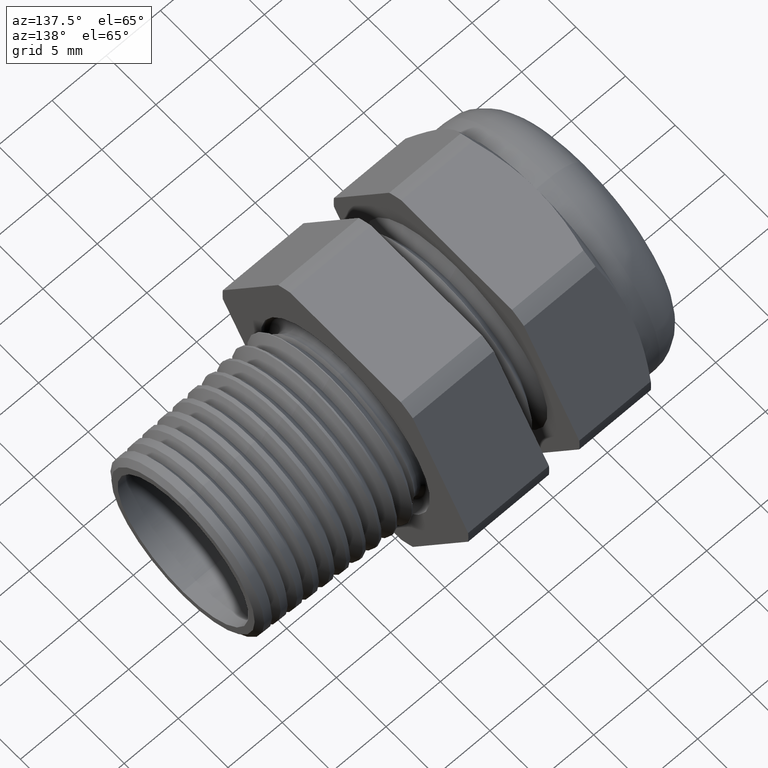
[diagram: clean part render]
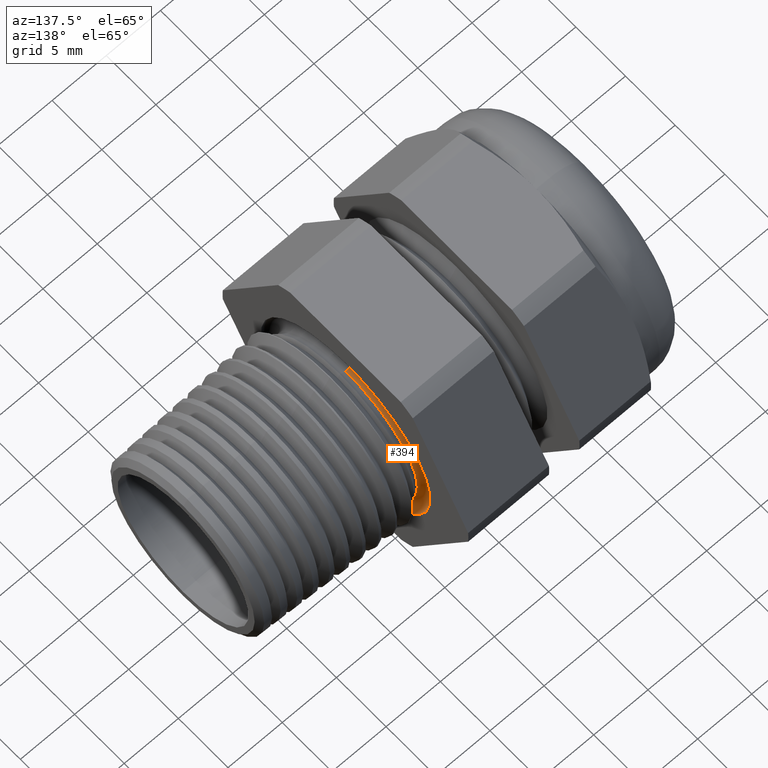
[diagram: same view with one face highlighted and labeled with its STEP entity id]
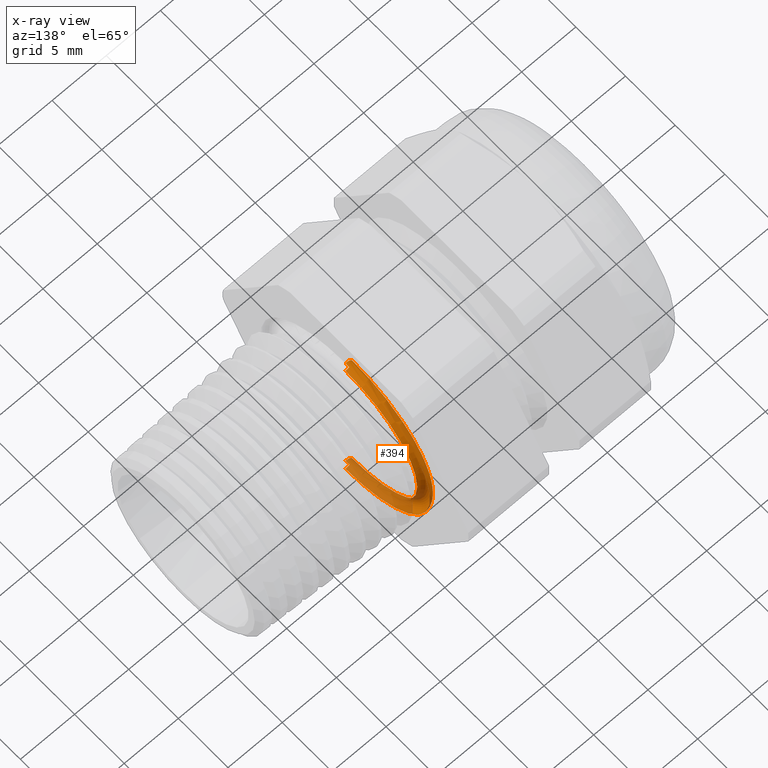
[diagram: x-ray of the same camera — body ghosted, the highlighted face saturated]
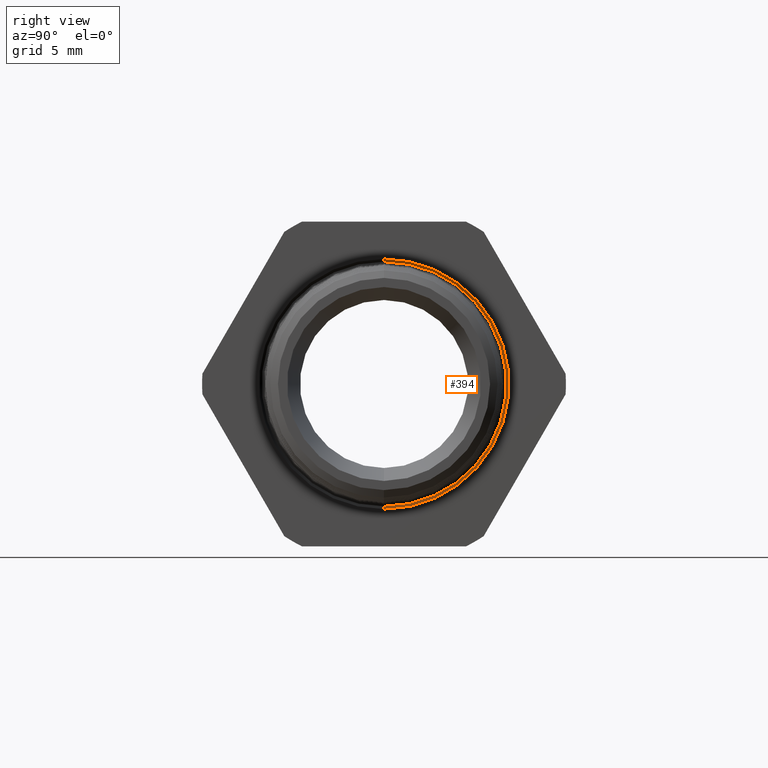
[diagram: same view with one face highlighted and labeled with its STEP entity id]
A machine part, auxiliary view. The second image highlights one B-rep face of the part: STEP entity #394.
The next image is the same camera in x-ray: the body ghosted, the highlighted face saturated — about 31% of this face is hidden behind the body in this view.
A second angle (right view) of the same face is appended — the face is thin or edge-on in the first view.
In plain terms, the highlighted toroidal blend (fillet) surface has major radius 7.874 mm and minor (blend) radius 0.635 mm.
Its self-contained STEP definition (entity closure, byte-faithful):
#120 = VERTEX_POINT ( 'NONE', #1433 ) ;
#394 = ADVANCED_FACE ( 'NONE', ( #1901 ), #1894, .F. ) ;
#395 = EDGE_LOOP ( 'NONE', ( #396, #397, #398, #399 ) ) ;
#396 = ORIENTED_EDGE ( 'NONE', *, *, #3641, .F. ) ;
#397 = ORIENTED_EDGE ( 'NONE', *, *, #3646, .T. ) ;
#398 = ORIENTED_EDGE ( 'NONE', *, *, #708, .T. ) ;
#399 = ORIENTED_EDGE ( 'NONE', *, *, #3651, .F. ) ;
#708 = EDGE_CURVE ( 'NONE', #3643, #3647, #2476, .T. ) ;
#1433 = CARTESIAN_POINT ( 'NONE',  ( -3.061616997868362800E-018, 0.0000000000000000000, -0.2850000000000002000 ) ) ;
#1891 = DIRECTION ( 'NONE',  ( 0.0000000000000000000, 0.0000000000000000000, -1.000000000000000000 ) ) ;
#1892 = DIRECTION ( 'NONE',  ( 1.000000000000000000, 0.0000000000000000000, 0.0000000000000000000 ) ) ;
#1893 = AXIS2_PLACEMENT_3D ( 'NONE', #1895, #1892, #1891 ) ;
#1894 = TOROIDAL_SURFACE ( 'NONE', #1893, 0.3100000000000000500, 0.02499999999999983500 ) ;
#1895 = CARTESIAN_POINT ( 'NONE',  ( 0.0000000000000000000, 0.0000000000000000000, 0.0000000000000000000 ) ) ;
#1901 = FACE_OUTER_BOUND ( 'NONE', #395, .T. ) ;
#2472 = DIRECTION ( 'NONE',  ( 0.0000000000000000000, 0.0000000000000000000, 1.000000000000000000 ) ) ;
#2473 = DIRECTION ( 'NONE',  ( 1.000000000000000000, 0.0000000000000000000, 0.0000000000000000000 ) ) ;
#2474 = CARTESIAN_POINT ( 'NONE',  ( 0.0000000000000000000, 0.0000000000000000000, 0.0000000000000000000 ) ) ;
#2475 = AXIS2_PLACEMENT_3D ( 'NONE', #2474, #2473, #2472 ) ;
#2476 = CIRCLE ( 'NONE', #2475, 0.3349999999999998500 ) ;
#3405 = CIRCLE ( 'NONE', #3468, 0.02499999999999980000 ) ;
#3411 = CARTESIAN_POINT ( 'NONE',  ( 0.0000000000000000000, 4.102566777143631600E-017, 0.3349999999999998500 ) ) ;
#3412 = DIRECTION ( 'NONE',  ( 0.0000000000000000000, 0.0000000000000000000, -1.000000000000000000 ) ) ;
#3413 = DIRECTION ( 'NONE',  ( 0.0000000000000000000, -1.000000000000000000, 0.0000000000000000000 ) ) ;
#3414 = CARTESIAN_POINT ( 'NONE',  ( 0.0000000000000000000, 0.0000000000000000000, -0.3100000000000000500 ) ) ;
#3415 = AXIS2_PLACEMENT_3D ( 'NONE', #3414, #3413, #3412 ) ;
#3416 = CIRCLE ( 'NONE', #3415, 0.02499999999999980000 ) ;
#3417 = CARTESIAN_POINT ( 'NONE',  ( 0.0000000000000000000, 0.0000000000000000000, -0.3349999999999998500 ) ) ;
#3418 = DIRECTION ( 'NONE',  ( 0.0000000000000000000, 0.0000000000000000000, -1.000000000000000000 ) ) ;
#3419 = DIRECTION ( 'NONE',  ( 1.000000000000000000, 0.0000000000000000000, 0.0000000000000000000 ) ) ;
#3420 = CARTESIAN_POINT ( 'NONE',  ( -3.061616997868362800E-018, 0.0000000000000000000, 0.0000000000000000000 ) ) ;
#3421 = AXIS2_PLACEMENT_3D ( 'NONE', #3420, #3419, #3418 ) ;
#3422 = CIRCLE ( 'NONE', #3421, 0.2850000000000002000 ) ;
#3423 = CARTESIAN_POINT ( 'NONE',  ( -3.061616997868362800E-018, 3.490243377569960000E-017, 0.2850000000000002000 ) ) ;
#3465 = DIRECTION ( 'NONE',  ( 0.0000000000000000000, 1.224646799147355700E-016, 1.000000000000000000 ) ) ;
#3466 = DIRECTION ( 'NONE',  ( 0.0000000000000000000, 1.000000000000000000, -1.224646799147353200E-016 ) ) ;
#3467 = CARTESIAN_POINT ( 'NONE',  ( 0.0000000000000000000, 3.796405077356795800E-017, 0.3100000000000000500 ) ) ;
#3468 = AXIS2_PLACEMENT_3D ( 'NONE', #3467, #3466, #3465 ) ;
#3640 = VERTEX_POINT ( 'NONE', #3423 ) ;
#3641 = EDGE_CURVE ( 'NONE', #120, #3640, #3422, .T. ) ;
#3643 = VERTEX_POINT ( 'NONE', #3417 ) ;
#3646 = EDGE_CURVE ( 'NONE', #120, #3643, #3416, .T. ) ;
#3647 = VERTEX_POINT ( 'NONE', #3411 ) ;
#3651 = EDGE_CURVE ( 'NONE', #3640, #3647, #3405, .T. ) ;